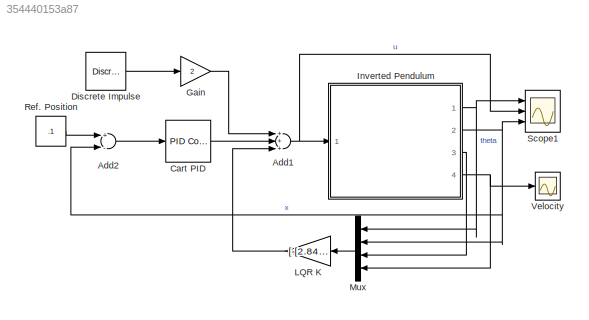
MODEL slx_354440153a87
KIND model
CONFIG AbsTol = auto
CONFIG FixedStep = auto
CONFIG MaxStep = auto
CONFIG MinStep = auto
CONFIG RelTol = 1e-3
CONFIG SampleTimeConstraint = Unconstrained
CONFIG Solver = ode45
CONFIG SolverMode = Auto
CONFIG SolverName = ode45
CONFIG StartTime = 0.0
CONFIG StopTime = 10
BLOCK [Sum] Add1
  InputSameDT = off
  Inputs = +++
  OutDataTypeStr = Inherit: Inherit via internal rule
  Ports = [3, 1]
  SaturateOnIntegerOverflow = off
BLOCK [Sum] Add2
  InputSameDT = off
  Inputs = +-
  OutDataTypeStr = Inherit: Inherit via internal rule
  Ports = [2, 1]
  SaturateOnIntegerOverflow = off
BLOCK [Reference] Cart PID  REF=simulink/Continuous/PID Controller
  Ports = [1, 1]
  SourceBlock = simulink/Continuous/PID Controller
  SourceType = PID 1dof
BLOCK [Reference] Discrete Impulse  REF=dspsrcs4/Discrete 
Impulse
  Ports = [0, 1]
  SourceBlock = dspsrcs4/Discrete \nImpulse
  SourceType = Discrete Impulse
BLOCK [Gain] Gain
  Gain = 2
  OutDataTypeStr = Inherit: Inherit via internal rule
  ParamDataTypeStr = Inherit: Inherit via internal rule
  SaturateOnIntegerOverflow = off
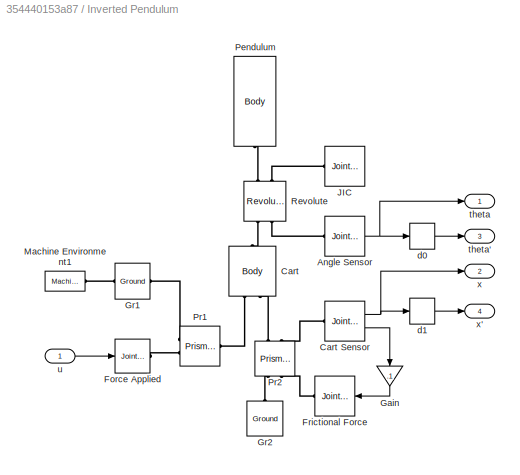
BLOCK [SubSystem] Inverted Pendulum
  Ports = [1, 4]
  RequestExecContextInheritance = off
  Variant = off
BLOCK [Reference] Inverted Pendulum/Angle Sensor  REF=mblibv1/Sensors & 
Actuators/Joint Sensor
  Ports = [0, 1, 0, 0, 0, 1]
  SourceBlock = mblibv1/Sensors & \nActuators/Joint Sensor
  SourceType = Joint Sensor
BLOCK [Reference] Inverted Pendulum/Cart  REF=mblibv1/Bodies/Body
  Ports = [0, 0, 0, 0, 0, 2, 1]
  SourceBlock = mblibv1/Bodies/Body
  SourceType = Body
BLOCK [Reference] Inverted Pendulum/Cart Sensor  REF=mblibv1/Sensors & 
Actuators/Joint Sensor
  Ports = [0, 2, 0, 0, 0, 1]
  SourceBlock = mblibv1/Sensors & \nActuators/Joint Sensor
  SourceType = Joint Sensor
BLOCK [Reference] Inverted Pendulum/Force Applied  REF=mblibv1/Sensors & 
Actuators/Joint Actuator
  Ports = [1, 0, 0, 0, 0, 0, 1]
  SourceBlock = mblibv1/Sensors & \nActuators/Joint Actuator
  SourceType = Joint Actuator
BLOCK [Reference] Inverted Pendulum/Frictional Force  REF=mblibv1/Sensors & 
Actuators/Joint Actuator
  Ports = [1, 0, 0, 0, 0, 0, 1]
  SourceBlock = mblibv1/Sensors & \nActuators/Joint Actuator
  SourceType = Joint Actuator
BLOCK [Gain] Inverted Pendulum/Gain
  Gain = .1
  OutDataTypeStr = Inherit: Inherit via internal rule
  ParamDataTypeStr = Inherit: Inherit via internal rule
  SaturateOnIntegerOverflow = off
BLOCK [Reference] Inverted Pendulum/Gr1  REF=mblibv1/Bodies/Ground
  Ports = [0, 0, 0, 0, 0, 1, 1]
  SourceBlock = mblibv1/Bodies/Ground
  SourceType = Ground
  UserDataPersistent = on
BLOCK [Reference] Inverted Pendulum/Gr2  REF=mblibv1/Bodies/Ground
  Ports = [0, 0, 0, 0, 0, 1, 1]
  SourceBlock = mblibv1/Bodies/Ground
  SourceType = Ground
  UserDataPersistent = on
BLOCK [Reference] Inverted Pendulum/JIC  REF=mblibv1/Sensors & 
Actuators/Joint Initial Condition
  Ports = [0, 0, 0, 0, 0, 0, 1]
  SourceBlock = mblibv1/Sensors & \nActuators/Joint Initial Condition
  SourceType = Joint Initial Condition
BLOCK [Reference] Inverted Pendulum/Machine Environment1  REF=mblibv1/Bodies/Machine
Environment
  Ports = [0, 0, 0, 0, 0, 0, 1]
  SourceBlock = mblibv1/Bodies/Machine\nEnvironment
  SourceType = Machine Environment
BLOCK [Reference] Inverted Pendulum/Pendulum  REF=mblibv1/Bodies/Body
  Ports = [0, 0, 0, 0, 0, 1]
  SourceBlock = mblibv1/Bodies/Body
  SourceType = Body
BLOCK [Reference] Inverted Pendulum/Pr1  REF=mblibv1/Joints/Prismatic
  Ports = [0, 0, 0, 0, 0, 2, 1]
  SourceBlock = mblibv1/Joints/Prismatic
  SourceType = Prismatic
BLOCK [Reference] Inverted Pendulum/Pr2  REF=mblibv1/Joints/Prismatic
  Ports = [0, 0, 0, 0, 0, 2, 2]
  SourceBlock = mblibv1/Joints/Prismatic
  SourceType = Prismatic
BLOCK [Reference] Inverted Pendulum/Revolute  REF=mblibv1/Joints/Revolute
  Ports = [0, 0, 0, 0, 0, 2, 2]
  SourceBlock = mblibv1/Joints/Revolute
  SourceType = Revolute
BLOCK [Derivative] Inverted Pendulum/d0
BLOCK [Derivative] Inverted Pendulum/d1
BLOCK [Outport] Inverted Pendulum/theta
  IconDisplay = Port number
BLOCK [Outport] Inverted Pendulum/theta'
  IconDisplay = Port number
  Port = 3
BLOCK [Inport] Inverted Pendulum/u
  IconDisplay = Port number
BLOCK [Outport] Inverted Pendulum/x
  IconDisplay = Port number
  Port = 2
BLOCK [Outport] Inverted Pendulum/x'
  IconDisplay = Port number
  Port = 4
BLOCK [Gain] LQR K
  Gain = [-[2.843486762962255e+02,-9.999999999997947,1.261559874520163e+02,-23.658230666989525]]
  Multiplication = Matrix(K*u)
  OutDataTypeStr = Inherit: Inherit via internal rule
  ParamDataTypeStr = Inherit: Inherit via internal rule
  SaturateOnIntegerOverflow = off
BLOCK [Mux] Mux
  DisplayOption = bar
  Ports = [4, 1]
BLOCK [Constant] Ref. Position
  Value = .1
BLOCK [Scope] Scope1
  NumInputPorts = 3
  Ports = [3]
  ScopeSpecificationString = Simulink.scopes.TimeScopeBlockCfg('CurrentConfiguration', extmgr.ConfigurationSet(extmgr.Configuration('Core','General UI',true),extmgr.Configuration('Core','Source UI',true),extmgr.Configuration('Sources','WiredSimulink',true,'DataLoggingVariableName','ScopeData1'),extmgr.Configuration('Visuals','Time Domain',true,'SerializedDisplays',{struct('MinYLimReal','-0.00089','MaxYLimReal','0.00063','YLab...<+2733ch>
BLOCK [Scope] Velocity
  Ports = [1]
  ScopeSpecificationString = Simulink.scopes.TimeScopeBlockCfg('CurrentConfiguration', extmgr.ConfigurationSet(extmgr.Configuration('Core','General UI',true),extmgr.Configuration('Core','Source UI',true),extmgr.Configuration('Sources','WiredSimulink',true,'DataLoggingVariableName','ScopeData1'),extmgr.Configuration('Visuals','Time Domain',true,'SerializedDisplays',{struct('MinYLimReal','-0.00268','MaxYLimReal','0.02274','YLab...<+2743ch>
NET Add1:1 -> Inverted Pendulum:1, Scope1:2
LINE Add2:1 -> Cart PID:1
LINE Cart PID:1 -> Add1:2
LINE Discrete Impulse:1 -> Gain:1
LINE Gain:1 -> Add1:1
NET Inverted Pendulum/Angle Sensor:1 -> Inverted Pendulum/d0:1, Inverted Pendulum/theta:1
NET Inverted Pendulum/Cart Sensor:1 -> Inverted Pendulum/d1:1, Inverted Pendulum/x:1
LINE Inverted Pendulum/Cart Sensor:2 -> Inverted Pendulum/Gain:1
LINE Inverted Pendulum/Gain:1 -> Inverted Pendulum/Frictional Force:1
LINE Inverted Pendulum/d0:1 -> Inverted Pendulum/theta':1
LINE Inverted Pendulum/d1:1 -> Inverted Pendulum/x':1
LINE Inverted Pendulum/u:1 -> Inverted Pendulum/Force Applied:1
NET Inverted Pendulum:1 -> Mux:1, Scope1:1
NET Inverted Pendulum:2 -> Add2:2, Mux:2, Scope1:3
LINE Inverted Pendulum:3 -> Mux:3
NET Inverted Pendulum:4 -> Mux:4, Velocity:1
LINE LQR K:1 -> Add1:3
LINE Mux:1 -> LQR K:1
LINE Ref. Position:1 -> Add2:1
PLINE Inverted Pendulum/Angle Sensor:LConn1 -- Inverted Pendulum/Revolute:LConn2
PLINE Inverted Pendulum/Cart Sensor:LConn1 -- Inverted Pendulum/Pr2:RConn2
PLINE Inverted Pendulum/Cart:LConn1 -- Inverted Pendulum/Pr1:RConn1
PLINE Inverted Pendulum/Cart:LConn2 -- Inverted Pendulum/Pr2:RConn1
PLINE Inverted Pendulum/Cart:RConn1 -- Inverted Pendulum/Revolute:LConn1
PLINE Inverted Pendulum/Force Applied:RConn1 -- Inverted Pendulum/Pr1:LConn2
PLINE Inverted Pendulum/Frictional Force:RConn1 -- Inverted Pendulum/Pr2:LConn2
PLINE Inverted Pendulum/Gr1:LConn1 -- Inverted Pendulum/Machine Environment1:RConn1
PLINE Inverted Pendulum/Gr1:RConn1 -- Inverted Pendulum/Pr1:LConn1
PLINE Inverted Pendulum/Gr2:RConn1 -- Inverted Pendulum/Pr2:LConn1
PLINE Inverted Pendulum/JIC:RConn1 -- Inverted Pendulum/Revolute:RConn2
PLINE Inverted Pendulum/Pendulum:LConn1 -- Inverted Pendulum/Revolute:RConn1
note: NET lines group one-source signal fan-out (src -> all destinations, sorted); 1:1 wires keep LINE
